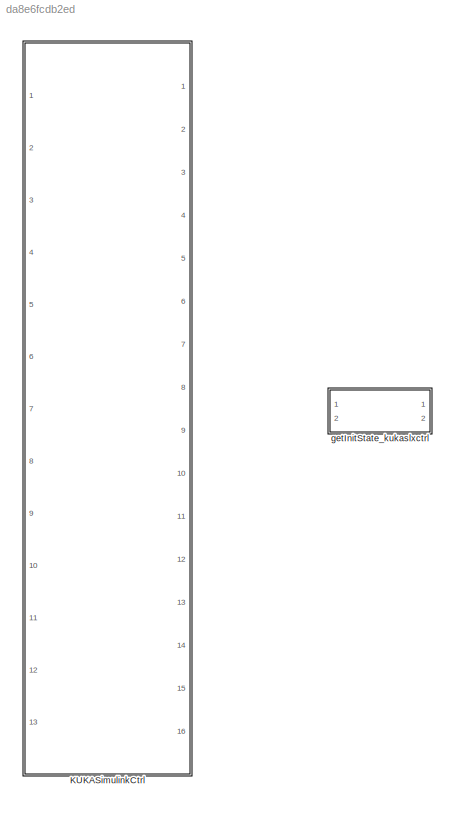
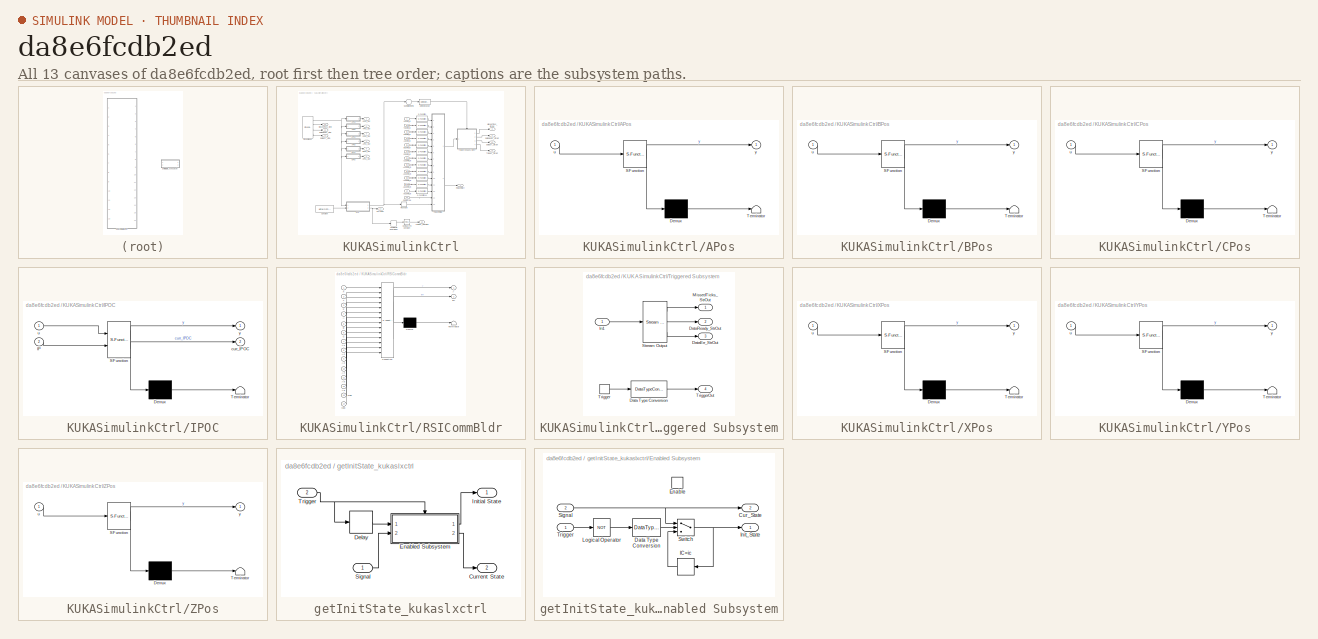
[diagram: thumbnail index - all 13 canvases of the model, root first then tree order]
MODEL slx_da8e6fcdb2ed
KIND library
CONFIG AbsTol = auto
CONFIG EnableMultiTasking = on
CONFIG FixedStep = auto
CONFIG MaxStep = auto
CONFIG MinStep = auto
CONFIG RelTol = 1e-3
CONFIG SampleTimeConstraint = Unconstrained
CONFIG Solver = ode45
CONFIG SolverName = ode45
CONFIG StartTime = 0.0
CONFIG StopTime = 10.0
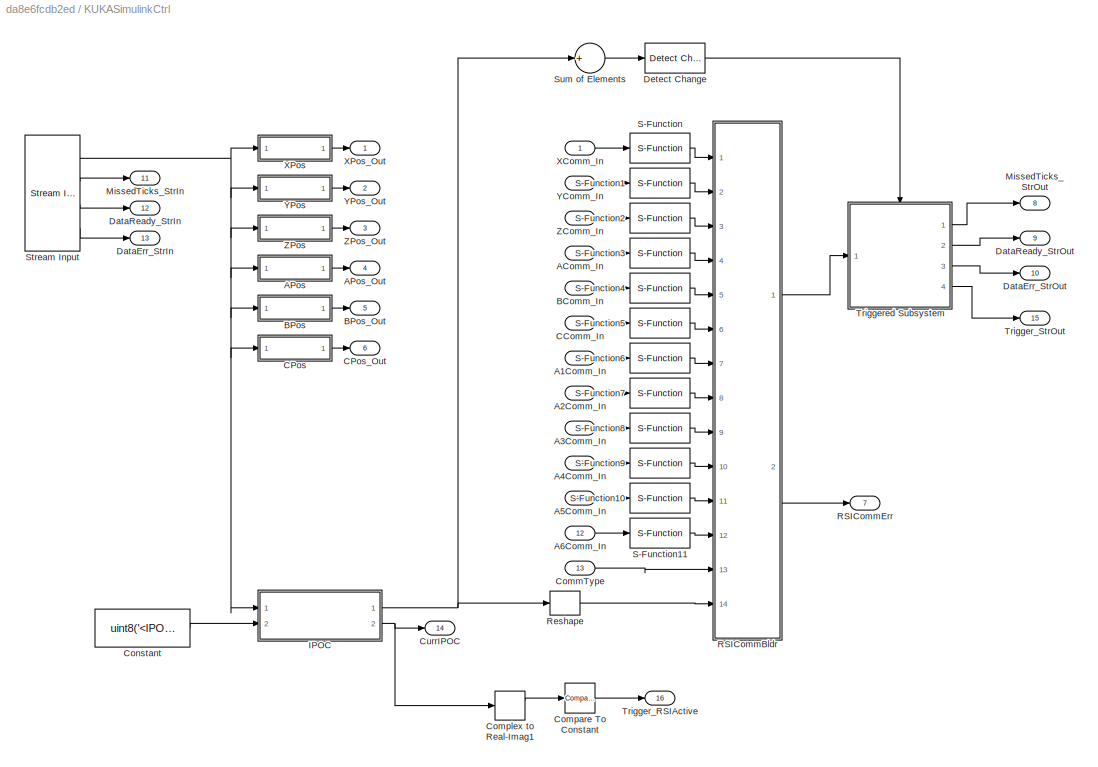
BLOCK [SubSystem] KUKASimulinkCtrl
  Ports = [13, 16]
  RequestExecContextInheritance = off
  Variant = off
BLOCK [Inport] KUKASimulinkCtrl/A1Comm_In
  IconDisplay = Port number
  Port = 7
BLOCK [Inport] KUKASimulinkCtrl/A2Comm_In
  IconDisplay = Port number
  Port = 8
BLOCK [Inport] KUKASimulinkCtrl/A3Comm_In
  IconDisplay = Port number
  Port = 9
BLOCK [Inport] KUKASimulinkCtrl/A4Comm_In
  IconDisplay = Port number
  Port = 10
BLOCK [Inport] KUKASimulinkCtrl/A5Comm_In
  IconDisplay = Port number
  Port = 11
BLOCK [Inport] KUKASimulinkCtrl/A6Comm_In
  IconDisplay = Port number
  Port = 12
BLOCK [Inport] KUKASimulinkCtrl/AComm_In
  IconDisplay = Port number
  Port = 4
BLOCK [SubSystem] KUKASimulinkCtrl/APos
  ErrorFcn = Stateflow.Translate.translate
  PermitHierarchicalResolution = ExplicitOnly
  Ports = [1, 1]
  RequestExecContextInheritance = off
  SFBlockType = MATLAB Function
  TreatAsAtomicUnit = on
  Variant = off
BLOCK [Demux] KUKASimulinkCtrl/APos/ Demux 
  Outputs = 1
  Ports = [1, 1]
BLOCK [S-Function] KUKASimulinkCtrl/APos/ SFunction 
  EnableBusSupport = off
  FunctionName = sf_sfun
  PortCounts = [1 2]
  Ports = [1, 2]
  SFcnIsStateOwnerBlock = off
  SFunctionDeploymentMode = off
  Tag = Stateflow S-Function kukaslxctrl 5
BLOCK [Terminator] KUKASimulinkCtrl/APos/ Terminator 
BLOCK [Inport] KUKASimulinkCtrl/APos/u
  IconDisplay = Port number
BLOCK [Outport] KUKASimulinkCtrl/APos/y
  IconDisplay = Port number
BLOCK [Outport] KUKASimulinkCtrl/APos_Out
  IconDisplay = Port number
  Port = 4
BLOCK [Inport] KUKASimulinkCtrl/BComm_In
  IconDisplay = Port number
  Port = 5
BLOCK [SubSystem] KUKASimulinkCtrl/BPos
  ErrorFcn = Stateflow.Translate.translate
  PermitHierarchicalResolution = ExplicitOnly
  Ports = [1, 1]
  RequestExecContextInheritance = off
  SFBlockType = MATLAB Function
  TreatAsAtomicUnit = on
  Variant = off
BLOCK [Demux] KUKASimulinkCtrl/BPos/ Demux 
  Outputs = 1
  Ports = [1, 1]
BLOCK [S-Function] KUKASimulinkCtrl/BPos/ SFunction 
  EnableBusSupport = off
  FunctionName = sf_sfun
  PortCounts = [1 2]
  Ports = [1, 2]
  SFcnIsStateOwnerBlock = off
  SFunctionDeploymentMode = off
  Tag = Stateflow S-Function kukaslxctrl 6
BLOCK [Terminator] KUKASimulinkCtrl/BPos/ Terminator 
BLOCK [Inport] KUKASimulinkCtrl/BPos/u
  IconDisplay = Port number
BLOCK [Outport] KUKASimulinkCtrl/BPos/y
  IconDisplay = Port number
BLOCK [Outport] KUKASimulinkCtrl/BPos_Out
  IconDisplay = Port number
  Port = 5
BLOCK [Inport] KUKASimulinkCtrl/CComm_In
  IconDisplay = Port number
  Port = 6
BLOCK [SubSystem] KUKASimulinkCtrl/CPos
  ErrorFcn = Stateflow.Translate.translate
  PermitHierarchicalResolution = ExplicitOnly
  Ports = [1, 1]
  RequestExecContextInheritance = off
  SFBlockType = MATLAB Function
  TreatAsAtomicUnit = on
  Variant = off
BLOCK [Demux] KUKASimulinkCtrl/CPos/ Demux 
  Outputs = 1
  Ports = [1, 1]
BLOCK [S-Function] KUKASimulinkCtrl/CPos/ SFunction 
  EnableBusSupport = off
  FunctionName = sf_sfun
  PortCounts = [1 2]
  Ports = [1, 2]
  SFcnIsStateOwnerBlock = off
  SFunctionDeploymentMode = off
  Tag = Stateflow S-Function kukaslxctrl 7
BLOCK [Terminator] KUKASimulinkCtrl/CPos/ Terminator 
BLOCK [Inport] KUKASimulinkCtrl/CPos/u
  IconDisplay = Port number
BLOCK [Outport] KUKASimulinkCtrl/CPos/y
  IconDisplay = Port number
BLOCK [Outport] KUKASimulinkCtrl/CPos_Out
  IconDisplay = Port number
  Port = 6
BLOCK [Inport] KUKASimulinkCtrl/CommType
  IconDisplay = Port number
  Port = 13
BLOCK [Reference] KUKASimulinkCtrl/Compare To Constant  REF=simulink/Logic and Bit
Operations/Compare
To Constant
  Ports = [1, 1]
  SourceBlock = simulink/Logic and Bit\nOperations/Compare\nTo Constant
  SourceType = Compare To Constant
BLOCK [ComplexToRealImag] KUKASimulinkCtrl/Complex to Real-Imag1
  Ports = [1, 2]
BLOCK [Constant] KUKASimulinkCtrl/Constant
  Value = uint8('<IPOC>')
BLOCK [Outport] KUKASimulinkCtrl/CurrIPOC
  IconDisplay = Port number
  Port = 14
BLOCK [Outport] KUKASimulinkCtrl/DataErr_StrIn
  IconDisplay = Port number
  Port = 13
BLOCK [Outport] KUKASimulinkCtrl/DataErr_StrOut
  IconDisplay = Port number
  Port = 10
BLOCK [Outport] KUKASimulinkCtrl/DataReady_StrIn
  IconDisplay = Port number
  Port = 12
BLOCK [Outport] KUKASimulinkCtrl/DataReady_StrOut
  IconDisplay = Port number
  Port = 9
BLOCK [Reference] KUKASimulinkCtrl/Detect Change  REF=simulink/Logic and Bit
Operations/Detect
Change
  Ports = [1, 1]
  SourceBlock = simulink/Logic and Bit\nOperations/Detect\nChange
  SourceType = Detect Change
BLOCK [SubSystem] KUKASimulinkCtrl/IPOC
  ErrorFcn = Stateflow.Translate.translate
  PermitHierarchicalResolution = ExplicitOnly
  Ports = [2, 2]
  RequestExecContextInheritance = off
  SFBlockType = MATLAB Function
  TreatAsAtomicUnit = on
  Variant = off
BLOCK [Demux] KUKASimulinkCtrl/IPOC/ Demux 
  Outputs = 1
  Ports = [1, 1]
BLOCK [S-Function] KUKASimulinkCtrl/IPOC/ SFunction 
  EnableBusSupport = off
  FunctionName = sf_sfun
  PortCounts = [2 3]
  Ports = [2, 3]
  SFcnIsStateOwnerBlock = off
  SFunctionDeploymentMode = off
  Tag = Stateflow S-Function kukaslxctrl 8
BLOCK [Terminator] KUKASimulinkCtrl/IPOC/ Terminator 
BLOCK [Inport] KUKASimulinkCtrl/IPOC/IP
  IconDisplay = Port number
  Port = 2
BLOCK [Outport] KUKASimulinkCtrl/IPOC/curr_IPOC
  IconDisplay = Port number
  Port = 2
BLOCK [Inport] KUKASimulinkCtrl/IPOC/u
  IconDisplay = Port number
BLOCK [Outport] KUKASimulinkCtrl/IPOC/y
  IconDisplay = Port number
BLOCK [Outport] KUKASimulinkCtrl/MissedTicks_StrIn
  IconDisplay = Port number
  Port = 11
BLOCK [Outport] KUKASimulinkCtrl/MissedTicks_StrOut
  IconDisplay = Port number
  Port = 8
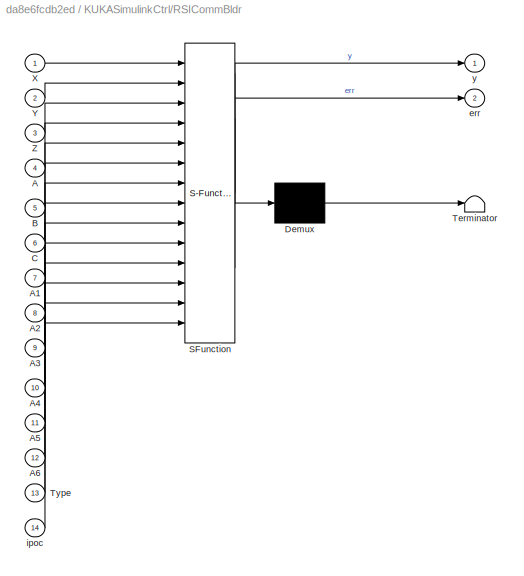
BLOCK [SubSystem] KUKASimulinkCtrl/RSICommBldr
  ErrorFcn = Stateflow.Translate.translate
  PermitHierarchicalResolution = ExplicitOnly
  Ports = [14, 2]
  RequestExecContextInheritance = off
  SFBlockType = MATLAB Function
  TreatAsAtomicUnit = on
  Variant = off
BLOCK [Demux] KUKASimulinkCtrl/RSICommBldr/ Demux 
  Outputs = 1
  Ports = [1, 1]
BLOCK [S-Function] KUKASimulinkCtrl/RSICommBldr/ SFunction 
  EnableBusSupport = off
  FunctionName = sf_sfun
  PortCounts = [14 3]
  Ports = [14, 3]
  SFcnIsStateOwnerBlock = off
  SFunctionDeploymentMode = off
  Tag = Stateflow S-Function kukaslxctrl 2
BLOCK [Terminator] KUKASimulinkCtrl/RSICommBldr/ Terminator 
BLOCK [Inport] KUKASimulinkCtrl/RSICommBldr/A
  IconDisplay = Port number
  Port = 4
BLOCK [Inport] KUKASimulinkCtrl/RSICommBldr/A1
  IconDisplay = Port number
  Port = 7
BLOCK [Inport] KUKASimulinkCtrl/RSICommBldr/A2
  IconDisplay = Port number
  Port = 8
BLOCK [Inport] KUKASimulinkCtrl/RSICommBldr/A3
  IconDisplay = Port number
  Port = 9
BLOCK [Inport] KUKASimulinkCtrl/RSICommBldr/A4
  IconDisplay = Port number
  Port = 10
BLOCK [Inport] KUKASimulinkCtrl/RSICommBldr/A5
  IconDisplay = Port number
  Port = 11
BLOCK [Inport] KUKASimulinkCtrl/RSICommBldr/A6
  IconDisplay = Port number
  Port = 12
BLOCK [Inport] KUKASimulinkCtrl/RSICommBldr/B
  IconDisplay = Port number
  Port = 5
BLOCK [Inport] KUKASimulinkCtrl/RSICommBldr/C
  IconDisplay = Port number
  Port = 6
BLOCK [Inport] KUKASimulinkCtrl/RSICommBldr/Type
  IconDisplay = Port number
  Port = 13
BLOCK [Inport] KUKASimulinkCtrl/RSICommBldr/X
  IconDisplay = Port number
BLOCK [Inport] KUKASimulinkCtrl/RSICommBldr/Y
  IconDisplay = Port number
  Port = 2
BLOCK [Inport] KUKASimulinkCtrl/RSICommBldr/Z
  IconDisplay = Port number
  Port = 3
BLOCK [Outport] KUKASimulinkCtrl/RSICommBldr/err
  IconDisplay = Port number
  Port = 2
BLOCK [Inport] KUKASimulinkCtrl/RSICommBldr/ipoc
  IconDisplay = Port number
  Port = 14
BLOCK [Outport] KUKASimulinkCtrl/RSICommBldr/y
  IconDisplay = Port number
BLOCK [Outport] KUKASimulinkCtrl/RSICommErr
  IconDisplay = Port number
  Port = 7
BLOCK [Reshape] KUKASimulinkCtrl/Reshape
  Ports = [1, 1]
BLOCK [S-Function] KUKASimulinkCtrl/S-Function
  EnableBusSupport = off
  FunctionName = Double2Str
  Ports = [1, 1]
  SFcnIsStateOwnerBlock = off
  SFunctionDeploymentMode = off
BLOCK [S-Function] KUKASimulinkCtrl/S-Function1
  EnableBusSupport = off
  FunctionName = Double2Str
  Ports = [1, 1]
  SFcnIsStateOwnerBlock = off
  SFunctionDeploymentMode = off
BLOCK [S-Function] KUKASimulinkCtrl/S-Function10
  EnableBusSupport = off
  FunctionName = Double2Str
  Ports = [1, 1]
  SFcnIsStateOwnerBlock = off
  SFunctionDeploymentMode = off
BLOCK [S-Function] KUKASimulinkCtrl/S-Function11
  EnableBusSupport = off
  FunctionName = Double2Str
  Ports = [1, 1]
  SFcnIsStateOwnerBlock = off
  SFunctionDeploymentMode = off
BLOCK [S-Function] KUKASimulinkCtrl/S-Function2
  EnableBusSupport = off
  FunctionName = Double2Str
  Ports = [1, 1]
  SFcnIsStateOwnerBlock = off
  SFunctionDeploymentMode = off
BLOCK [S-Function] KUKASimulinkCtrl/S-Function3
  EnableBusSupport = off
  FunctionName = Double2Str
  Ports = [1, 1]
  SFcnIsStateOwnerBlock = off
  SFunctionDeploymentMode = off
BLOCK [S-Function] KUKASimulinkCtrl/S-Function4
  EnableBusSupport = off
  FunctionName = Double2Str
  Ports = [1, 1]
  SFcnIsStateOwnerBlock = off
  SFunctionDeploymentMode = off
BLOCK [S-Function] KUKASimulinkCtrl/S-Function5
  EnableBusSupport = off
  FunctionName = Double2Str
  Ports = [1, 1]
  SFcnIsStateOwnerBlock = off
  SFunctionDeploymentMode = off
BLOCK [S-Function] KUKASimulinkCtrl/S-Function6
  EnableBusSupport = off
  FunctionName = Double2Str
  Ports = [1, 1]
  SFcnIsStateOwnerBlock = off
  SFunctionDeploymentMode = off
BLOCK [S-Function] KUKASimulinkCtrl/S-Function7
  EnableBusSupport = off
  FunctionName = Double2Str
  Ports = [1, 1]
  SFcnIsStateOwnerBlock = off
  SFunctionDeploymentMode = off
BLOCK [S-Function] KUKASimulinkCtrl/S-Function8
  EnableBusSupport = off
  FunctionName = Double2Str
  Ports = [1, 1]
  SFcnIsStateOwnerBlock = off
  SFunctionDeploymentMode = off
BLOCK [S-Function] KUKASimulinkCtrl/S-Function9
  EnableBusSupport = off
  FunctionName = Double2Str
  Ports = [1, 1]
  SFcnIsStateOwnerBlock = off
  SFunctionDeploymentMode = off
BLOCK [Reference] KUKASimulinkCtrl/Stream Input  REF=sldrtlib/Stream Input
  AttributesFormatString = Standard Devices\nUDP Protocol [6A8Dh]
  Ports = [0, 4]
  SourceBlock = sldrtlib/Stream Input
  SourceType = Simulink Desktop Real-Time Stream Input
BLOCK [Sum] KUKASimulinkCtrl/Sum of Elements
  CollapseDim = 2
  CollapseMode = Specified dimension
  InputSameDT = off
  Inputs = +
  OutDataTypeStr = Inherit: Inherit via internal rule
  Ports = [1, 1]
  SaturateOnIntegerOverflow = off
BLOCK [Outport] KUKASimulinkCtrl/Trigger_RSIActive
  IconDisplay = Port number
  Port = 16
BLOCK [Outport] KUKASimulinkCtrl/Trigger_StrOut
  IconDisplay = Port number
  Port = 15
BLOCK [SubSystem] KUKASimulinkCtrl/Triggered Subsystem
  Ports = [1, 4, 0, 1]
  RequestExecContextInheritance = off
  TreatAsAtomicUnit = on
  Variant = off
BLOCK [DataTypeConversion] KUKASimulinkCtrl/Triggered Subsystem/Data Type Conversion
  OutDataTypeStr = double
  RndMeth = Floor
  SaturateOnIntegerOverflow = off
BLOCK [Outport] KUKASimulinkCtrl/Triggered Subsystem/DataErr_StrOut
  IconDisplay = Port number
  Port = 3
BLOCK [Outport] KUKASimulinkCtrl/Triggered Subsystem/DataReady_StrOut
  IconDisplay = Port number
  Port = 2
BLOCK [Inport] KUKASimulinkCtrl/Triggered Subsystem/In1
  IconDisplay = Port number
BLOCK [Outport] KUKASimulinkCtrl/Triggered Subsystem/MissedTicks_StrOut
  IconDisplay = Port number
BLOCK [Reference] KUKASimulinkCtrl/Triggered Subsystem/Stream Output  REF=sldrtlib/Stream Output
  AttributesFormatString = Standard Devices\nUDP Protocol [6A8Dh]
  Ports = [1, 3]
  SourceBlock = sldrtlib/Stream Output
  SourceType = Simulink Desktop Real-Time Stream Output
BLOCK [TriggerPort] KUKASimulinkCtrl/Triggered Subsystem/Trigger
  Ports = [0, 1]
  ShowOutputPort = on
  StatesWhenEnabling = held
  VariantControl = Variant
BLOCK [Outport] KUKASimulinkCtrl/Triggered Subsystem/TriggerOut
  IconDisplay = Port number
  Port = 4
BLOCK [Inport] KUKASimulinkCtrl/XComm_In
  IconDisplay = Port number
BLOCK [SubSystem] KUKASimulinkCtrl/XPos
  ErrorFcn = Stateflow.Translate.translate
  PermitHierarchicalResolution = ExplicitOnly
  Ports = [1, 1]
  RequestExecContextInheritance = off
  SFBlockType = MATLAB Function
  TreatAsAtomicUnit = on
  Variant = off
BLOCK [Demux] KUKASimulinkCtrl/XPos/ Demux 
  Outputs = 1
  Ports = [1, 1]
BLOCK [S-Function] KUKASimulinkCtrl/XPos/ SFunction 
  EnableBusSupport = off
  FunctionName = sf_sfun
  PortCounts = [1 2]
  Ports = [1, 2]
  SFcnIsStateOwnerBlock = off
  SFunctionDeploymentMode = off
  Tag = Stateflow S-Function kukaslxctrl 1
BLOCK [Terminator] KUKASimulinkCtrl/XPos/ Terminator 
BLOCK [Inport] KUKASimulinkCtrl/XPos/u
  IconDisplay = Port number
BLOCK [Outport] KUKASimulinkCtrl/XPos/y
  IconDisplay = Port number
BLOCK [Outport] KUKASimulinkCtrl/XPos_Out
  IconDisplay = Port number
BLOCK [Inport] KUKASimulinkCtrl/YComm_In
  IconDisplay = Port number
  Port = 2
BLOCK [SubSystem] KUKASimulinkCtrl/YPos
  ErrorFcn = Stateflow.Translate.translate
  PermitHierarchicalResolution = ExplicitOnly
  Ports = [1, 1]
  RequestExecContextInheritance = off
  SFBlockType = MATLAB Function
  TreatAsAtomicUnit = on
  Variant = off
BLOCK [Demux] KUKASimulinkCtrl/YPos/ Demux 
  Outputs = 1
  Ports = [1, 1]
BLOCK [S-Function] KUKASimulinkCtrl/YPos/ SFunction 
  EnableBusSupport = off
  FunctionName = sf_sfun
  PortCounts = [1 2]
  Ports = [1, 2]
  SFcnIsStateOwnerBlock = off
  SFunctionDeploymentMode = off
  Tag = Stateflow S-Function kukaslxctrl 3
BLOCK [Terminator] KUKASimulinkCtrl/YPos/ Terminator 
BLOCK [Inport] KUKASimulinkCtrl/YPos/u
  IconDisplay = Port number
BLOCK [Outport] KUKASimulinkCtrl/YPos/y
  IconDisplay = Port number
BLOCK [Outport] KUKASimulinkCtrl/YPos_Out
  IconDisplay = Port number
  Port = 2
BLOCK [Inport] KUKASimulinkCtrl/ZComm_In
  IconDisplay = Port number
  Port = 3
BLOCK [SubSystem] KUKASimulinkCtrl/ZPos
  ErrorFcn = Stateflow.Translate.translate
  PermitHierarchicalResolution = ExplicitOnly
  Ports = [1, 1]
  RequestExecContextInheritance = off
  SFBlockType = MATLAB Function
  TreatAsAtomicUnit = on
  Variant = off
BLOCK [Demux] KUKASimulinkCtrl/ZPos/ Demux 
  Outputs = 1
  Ports = [1, 1]
BLOCK [S-Function] KUKASimulinkCtrl/ZPos/ SFunction 
  EnableBusSupport = off
  FunctionName = sf_sfun
  PortCounts = [1 2]
  Ports = [1, 2]
  SFcnIsStateOwnerBlock = off
  SFunctionDeploymentMode = off
  Tag = Stateflow S-Function kukaslxctrl 4
BLOCK [Terminator] KUKASimulinkCtrl/ZPos/ Terminator 
BLOCK [Inport] KUKASimulinkCtrl/ZPos/u
  IconDisplay = Port number
BLOCK [Outport] KUKASimulinkCtrl/ZPos/y
  IconDisplay = Port number
BLOCK [Outport] KUKASimulinkCtrl/ZPos_Out
  IconDisplay = Port number
  Port = 3
BLOCK [SubSystem] getInitState_kukaslxctrl
  AncestorBlock = dcpctrl/getInitState
  Ports = [2, 2]
  RequestExecContextInheritance = off
  Variant = off
BLOCK [Outport] getInitState_kukaslxctrl/Current State
  IconDisplay = Port number
  Port = 2
BLOCK [Delay] getInitState_kukaslxctrl/Delay
  DelayLength = 1
  InitialCondition = 0
  InputPortMap = u0
  Ports = [1, 1]
BLOCK [SubSystem] getInitState_kukaslxctrl/Enabled Subsystem
  Ports = [2, 2, 1]
  RequestExecContextInheritance = off
  TreatAsAtomicUnit = on
  Variant = off
BLOCK [Outport] getInitState_kukaslxctrl/Enabled Subsystem/Cur_State
  IconDisplay = Port number
  Port = 2
BLOCK [DataTypeConversion] getInitState_kukaslxctrl/Enabled Subsystem/Data Type Conversion
  OutDataTypeStr = boolean
  RndMeth = Floor
  SaturateOnIntegerOverflow = off
BLOCK [EnablePort] getInitState_kukaslxctrl/Enabled Subsystem/Enable
  Ports = []
  StatesWhenEnabling = reset
BLOCK [Memory] getInitState_kukaslxctrl/Enabled Subsystem/IC=ic
  LinearizeAsDelay = on
BLOCK [Outport] getInitState_kukaslxctrl/Enabled Subsystem/Init_State
  IconDisplay = Port number
BLOCK [Logic] getInitState_kukaslxctrl/Enabled Subsystem/Logical Operator
  AllPortsSameDT = off
  Operator = NOT
  OutDataTypeStr = boolean
  Ports = [1, 1]
BLOCK [Inport] getInitState_kukaslxctrl/Enabled Subsystem/Signal
  IconDisplay = Port number
  Port = 2
BLOCK [Switch] getInitState_kukaslxctrl/Enabled Subsystem/Switch
  Threshold = 0.5
BLOCK [Inport] getInitState_kukaslxctrl/Enabled Subsystem/Trigger
  IconDisplay = Port number
BLOCK [Outport] getInitState_kukaslxctrl/Initial State
  IconDisplay = Port number
BLOCK [Inport] getInitState_kukaslxctrl/Signal
  IconDisplay = Port number
BLOCK [Inport] getInitState_kukaslxctrl/Trigger
  IconDisplay = Port number
  Port = 2
LINE KUKASimulinkCtrl/A1Comm_In:1 -> KUKASimulinkCtrl/S-Function6:1
LINE KUKASimulinkCtrl/A2Comm_In:1 -> KUKASimulinkCtrl/S-Function7:1
LINE KUKASimulinkCtrl/A3Comm_In:1 -> KUKASimulinkCtrl/S-Function8:1
LINE KUKASimulinkCtrl/A4Comm_In:1 -> KUKASimulinkCtrl/S-Function9:1
LINE KUKASimulinkCtrl/A5Comm_In:1 -> KUKASimulinkCtrl/S-Function10:1
LINE KUKASimulinkCtrl/A6Comm_In:1 -> KUKASimulinkCtrl/S-Function11:1
LINE KUKASimulinkCtrl/AComm_In:1 -> KUKASimulinkCtrl/S-Function3:1
LINE KUKASimulinkCtrl/APos:1 -> KUKASimulinkCtrl/APos_Out:1
LINE KUKASimulinkCtrl/BComm_In:1 -> KUKASimulinkCtrl/S-Function4:1
LINE KUKASimulinkCtrl/BPos:1 -> KUKASimulinkCtrl/BPos_Out:1
LINE KUKASimulinkCtrl/CComm_In:1 -> KUKASimulinkCtrl/S-Function5:1
LINE KUKASimulinkCtrl/CPos:1 -> KUKASimulinkCtrl/CPos_Out:1
LINE KUKASimulinkCtrl/CommType:1 -> KUKASimulinkCtrl/RSICommBldr:13
LINE KUKASimulinkCtrl/Compare To Constant:1 -> KUKASimulinkCtrl/Trigger_RSIActive:1
LINE KUKASimulinkCtrl/Complex to Real-Imag1:1 -> KUKASimulinkCtrl/Compare To Constant:1
LINE KUKASimulinkCtrl/Constant:1 -> KUKASimulinkCtrl/IPOC:2
LINE KUKASimulinkCtrl/Detect Change:1 -> KUKASimulinkCtrl/Triggered Subsystem:trigger
NET KUKASimulinkCtrl/IPOC:1 -> KUKASimulinkCtrl/Reshape:1, KUKASimulinkCtrl/Sum of Elements:1
NET KUKASimulinkCtrl/IPOC:2 -> KUKASimulinkCtrl/Complex to Real-Imag1:1, KUKASimulinkCtrl/CurrIPOC:1
LINE KUKASimulinkCtrl/RSICommBldr:1 -> KUKASimulinkCtrl/Triggered Subsystem:1
LINE KUKASimulinkCtrl/RSICommBldr:2 -> KUKASimulinkCtrl/RSICommErr:1
LINE KUKASimulinkCtrl/Reshape:1 -> KUKASimulinkCtrl/RSICommBldr:14
LINE KUKASimulinkCtrl/S-Function10:1 -> KUKASimulinkCtrl/RSICommBldr:11
LINE KUKASimulinkCtrl/S-Function11:1 -> KUKASimulinkCtrl/RSICommBldr:12
LINE KUKASimulinkCtrl/S-Function1:1 -> KUKASimulinkCtrl/RSICommBldr:2
LINE KUKASimulinkCtrl/S-Function2:1 -> KUKASimulinkCtrl/RSICommBldr:3
LINE KUKASimulinkCtrl/S-Function3:1 -> KUKASimulinkCtrl/RSICommBldr:4
LINE KUKASimulinkCtrl/S-Function4:1 -> KUKASimulinkCtrl/RSICommBldr:5
LINE KUKASimulinkCtrl/S-Function5:1 -> KUKASimulinkCtrl/RSICommBldr:6
LINE KUKASimulinkCtrl/S-Function6:1 -> KUKASimulinkCtrl/RSICommBldr:7
LINE KUKASimulinkCtrl/S-Function7:1 -> KUKASimulinkCtrl/RSICommBldr:8
LINE KUKASimulinkCtrl/S-Function8:1 -> KUKASimulinkCtrl/RSICommBldr:9
LINE KUKASimulinkCtrl/S-Function9:1 -> KUKASimulinkCtrl/RSICommBldr:10
LINE KUKASimulinkCtrl/S-Function:1 -> KUKASimulinkCtrl/RSICommBldr:1
NET KUKASimulinkCtrl/Stream Input:1 -> KUKASimulinkCtrl/APos:1, KUKASimulinkCtrl/BPos:1, KUKASimulinkCtrl/CPos:1, KUKASimulinkCtrl/IPOC:1, KUKASimulinkCtrl/XPos:1, KUKASimulinkCtrl/YPos:1, KUKASimulinkCtrl/ZPos:1
LINE KUKASimulinkCtrl/Stream Input:2 -> KUKASimulinkCtrl/MissedTicks_StrIn:1
LINE KUKASimulinkCtrl/Stream Input:3 -> KUKASimulinkCtrl/DataReady_StrIn:1
LINE KUKASimulinkCtrl/Stream Input:4 -> KUKASimulinkCtrl/DataErr_StrIn:1
LINE KUKASimulinkCtrl/Sum of Elements:1 -> KUKASimulinkCtrl/Detect Change:1
LINE KUKASimulinkCtrl/Triggered Subsystem/Data Type Conversion:1 -> KUKASimulinkCtrl/Triggered Subsystem/TriggerOut:1
LINE KUKASimulinkCtrl/Triggered Subsystem/In1:1 -> KUKASimulinkCtrl/Triggered Subsystem/Stream Output:1
LINE KUKASimulinkCtrl/Triggered Subsystem/Stream Output:1 -> KUKASimulinkCtrl/Triggered Subsystem/MissedTicks_StrOut:1
LINE KUKASimulinkCtrl/Triggered Subsystem/Stream Output:2 -> KUKASimulinkCtrl/Triggered Subsystem/DataReady_StrOut:1
LINE KUKASimulinkCtrl/Triggered Subsystem/Stream Output:3 -> KUKASimulinkCtrl/Triggered Subsystem/DataErr_StrOut:1
LINE KUKASimulinkCtrl/Triggered Subsystem/Trigger:1 -> KUKASimulinkCtrl/Triggered Subsystem/Data Type Conversion:1
LINE KUKASimulinkCtrl/Triggered Subsystem:1 -> KUKASimulinkCtrl/MissedTicks_StrOut:1
LINE KUKASimulinkCtrl/Triggered Subsystem:2 -> KUKASimulinkCtrl/DataReady_StrOut:1
LINE KUKASimulinkCtrl/Triggered Subsystem:3 -> KUKASimulinkCtrl/DataErr_StrOut:1
LINE KUKASimulinkCtrl/Triggered Subsystem:4 -> KUKASimulinkCtrl/Trigger_StrOut:1
LINE KUKASimulinkCtrl/XComm_In:1 -> KUKASimulinkCtrl/S-Function:1
LINE KUKASimulinkCtrl/XPos:1 -> KUKASimulinkCtrl/XPos_Out:1
LINE KUKASimulinkCtrl/YComm_In:1 -> KUKASimulinkCtrl/S-Function1:1
LINE KUKASimulinkCtrl/YPos:1 -> KUKASimulinkCtrl/YPos_Out:1
LINE KUKASimulinkCtrl/ZComm_In:1 -> KUKASimulinkCtrl/S-Function2:1
LINE KUKASimulinkCtrl/ZPos:1 -> KUKASimulinkCtrl/ZPos_Out:1
note: NET lines group one-source signal fan-out (src -> all destinations, sorted); 1:1 wires keep LINE
CHART KUKASimulinkCtrl/XPos states=1 transitions=1
  STATE_LABEL 'eML_blk_kernel()'
  STATE_LABEL "SCRIPT:\nfunction y = fcn(u)\n%#codegen\n\n% Convert input into characters.\nstring = char(u);\n\n% Locate start of X and Y strings\nindx_X = strfind(string','X=');\nindx_Y = strfind(string','Y=');\n\n% Once X and Y strings have been located, grab the intervening characters\n% (the X position). Otherwise, set to 0.\nif ~isempty(indx_X)\n    str_X = string((indx_X(1)+3):(indx_Y(1)-3));\n    doub_X = str2double(st...<+171ch>"
CHART KUKASimulinkCtrl/RSICommBldr states=1 transitions=1
  STATE_LABEL 'eML_blk_kernel()'
  STATE_LABEL 'SCRIPT:\nfunction [y, err] = fcn(X,Y,Z,A,B,C,A1,A2,A3,A4,A5,A6,Type,ipoc)\n%#codegen\n\nerr = 0; % Default: define no error state.\n\n%{\n% Check whether we\'re inputting a RKorr or AKorr\nswitch Type\n    case 82 % Either \'R\' or \'r\' passed in as uint8 - 82 or 114\n        s1 = uint8(\'<Sen Type="ImFree"><RKorr \');\n        s2 = uint8(\'X="\');\n        s3 = uint8(\'" Y="\');\n        s4 = uint8(\'" Z="\');\n        s5...<+1641ch>'
CHART KUKASimulinkCtrl/YPos states=1 transitions=1
  STATE_LABEL 'eML_blk_kernel()'
  STATE_LABEL "SCRIPT:\nfunction y = fcn(u)\n%#codegen\n\n% Convert input into characters.\nstring = char(u);\n\n% Locate start of X and Y strings\nindx_Y = strfind(string','Y=');\nindx_Z = strfind(string','Z=');\n\n% Once X and Y strings have been located, grab the intervening characters\n% (the X position). Otherwise, set to 0.\nif ~isempty(indx_Y)\n    str_Y = string((indx_Y(1)+3):(indx_Z(1)-3));\n    doub_Y = str2double(st...<+171ch>"
CHART KUKASimulinkCtrl/ZPos states=1 transitions=1
  STATE_LABEL 'eML_blk_kernel()'
  STATE_LABEL "SCRIPT:\nfunction y = fcn(u)\n%#codegen\n\n% Convert input into characters.\nstring = char(u);\n\n% Locate start of X and Y strings\nindx_Z = strfind(string','Z=');\nindx_A = strfind(string','A=');\n\n% Once X and Y strings have been located, grab the intervening characters\n% (the X position). Otherwise, set to 0.\nif ~isempty(indx_Z)\n    str_Z = string((indx_Z(1)+3):(indx_A(1)-3));\n    doub_Z = str2double(st...<+171ch>"
CHART KUKASimulinkCtrl/APos states=1 transitions=1
  STATE_LABEL 'eML_blk_kernel()'
  STATE_LABEL "SCRIPT:\nfunction y = fcn(u)\n%#codegen\n\n% Convert input into characters.\nstring = char(u);\n\n% Locate start of X and Y strings\nindx_A = strfind(string','A=');\nindx_B = strfind(string','B=');\n\n% Once X and Y strings have been located, grab the intervening characters\n% (the X position). Otherwise, set to 0.\nif ~isempty(indx_A)\n    str_A = string((indx_A(1)+3):(indx_B(1)-3));\n    doub_A = str2double(st...<+171ch>"
CHART KUKASimulinkCtrl/BPos states=1 transitions=1
  STATE_LABEL 'eML_blk_kernel()'
  STATE_LABEL "SCRIPT:\nfunction y = fcn(u)\n%#codegen\n\n% Convert input into characters.\nstring = char(u);\n\n% Locate start of X and Y strings\nindx_B = strfind(string','B=');\nindx_C = strfind(string','C=');\n\n% Once X and Y strings have been located, grab the intervening characters\n% (the X position). Otherwise, set to 0.\nif ~isempty(indx_B)\n    str_B = string((indx_B(1)+3):(indx_C(1)-3));\n    doub_B = str2double(st...<+171ch>"
CHART KUKASimulinkCtrl/CPos states=1 transitions=1
  STATE_LABEL 'eML_blk_kernel()'
  STATE_LABEL "SCRIPT:\nfunction y = fcn(u)\n%#codegen\n\n% Convert input into characters.\nstring = char(u);\n\n% Locate start of X and Y strings\nindx_C = strfind(string','C=');\nindx_RSol = strfind(string','/><AIPos');\n\n% Once X and Y strings have been located, grab the intervening characters\n% (the X position). Otherwise, set to 0.\nif ~isempty(indx_C)\n    str_C = string((indx_C(1)+3):(indx_RSol(1)-3));\n    doub_C = s...<+183ch>"
CHART KUKASimulinkCtrl/IPOC states=1 transitions=1
  STATE_LABEL 'eML_blk_kernel()'
  STATE_LABEL "SCRIPT:\nfunction [y, curr_IPOC] = fcn(u, IP)\n%#codegen\n\npos = 1;\npos_end = 2;\nstartStrLen = 6; % Length of IPOC start string. Hard-coded for speed\nlenU = length(u);\n%disp(['Reading input:' u']);\n\nfor i = 1:length(u)-startStrLen\n    % Compare every set of 6 elements to IPOC start string. If their sum is\n    % 6, we've found the start of the string.\n    if (sum(u(i:i+(startStrLen-1)) == IP) == 6)\n  ...<+558ch>"
